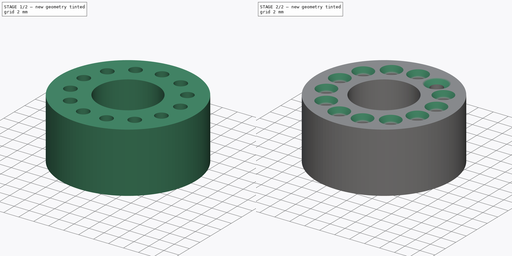
[diagram: build sequence overview — one tinted view per stage of 2, left to right]
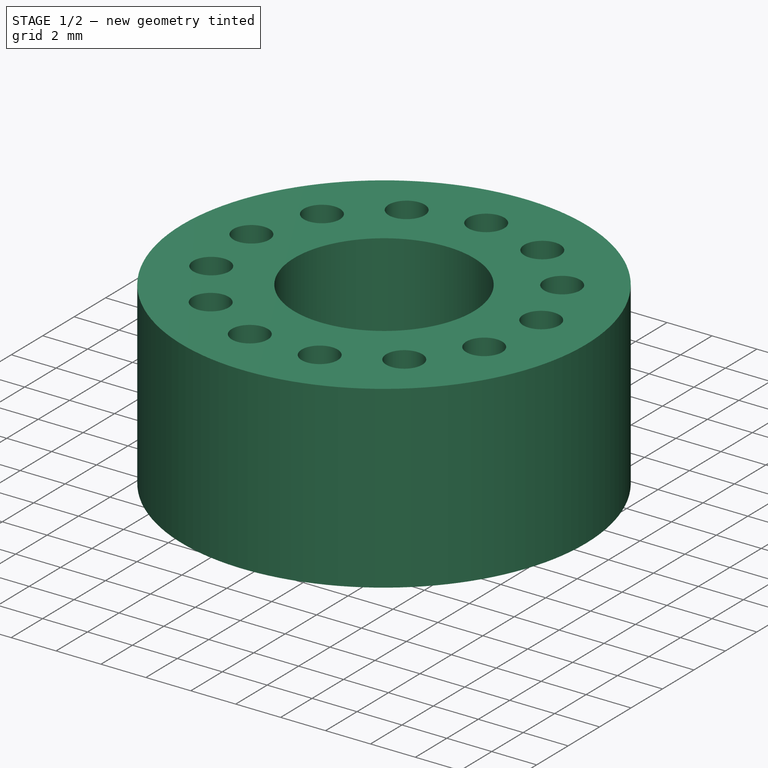
[diagram: stage 1 of 2 — iso view after this stage's code; geometry added in this stage tinted green]
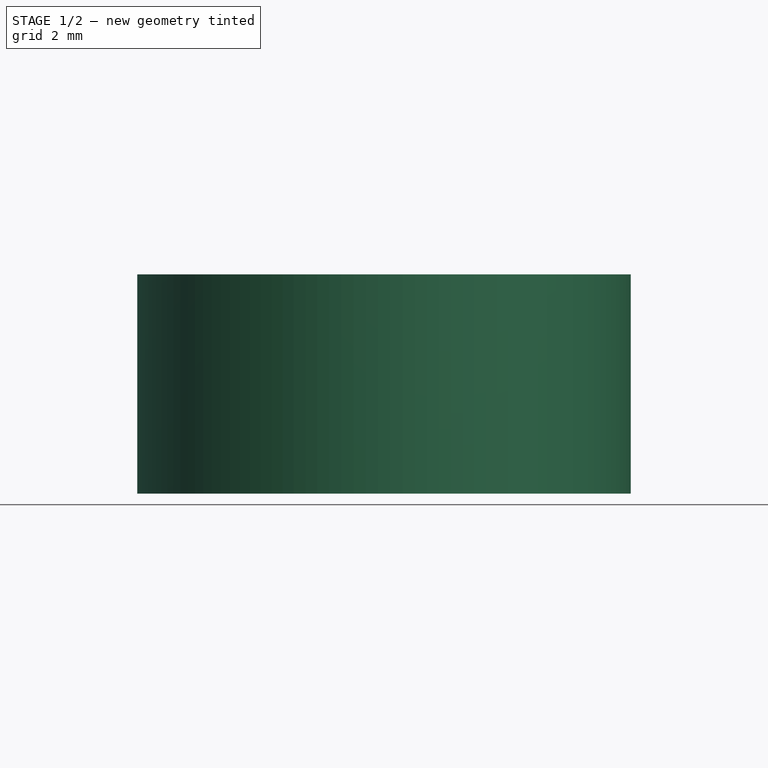
[diagram: stage 1 of 2 — front view after this stage's code; geometry added in this stage tinted green]
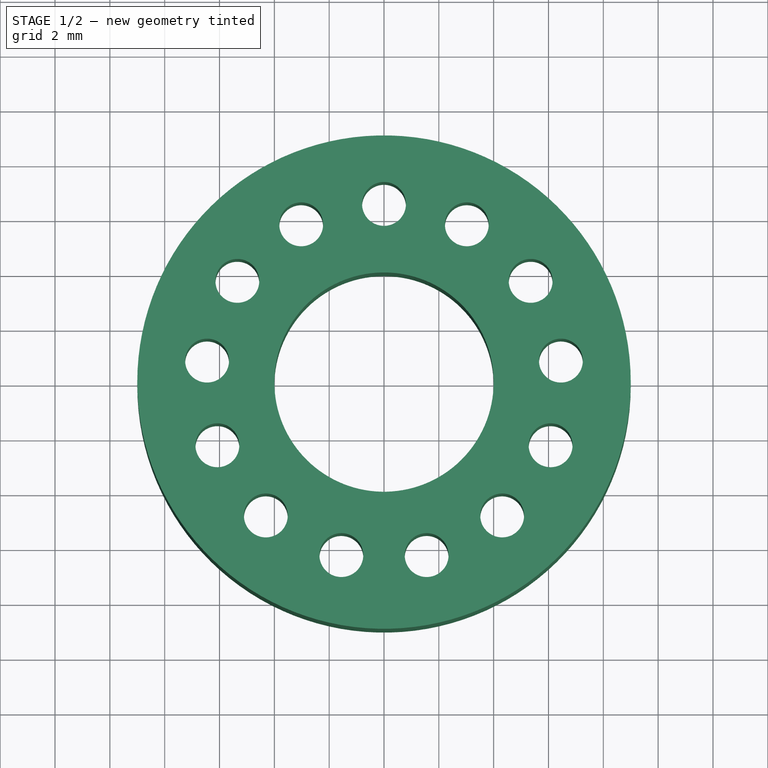
[diagram: stage 1 of 2 — top view after this stage's code; geometry added in this stage tinted green]
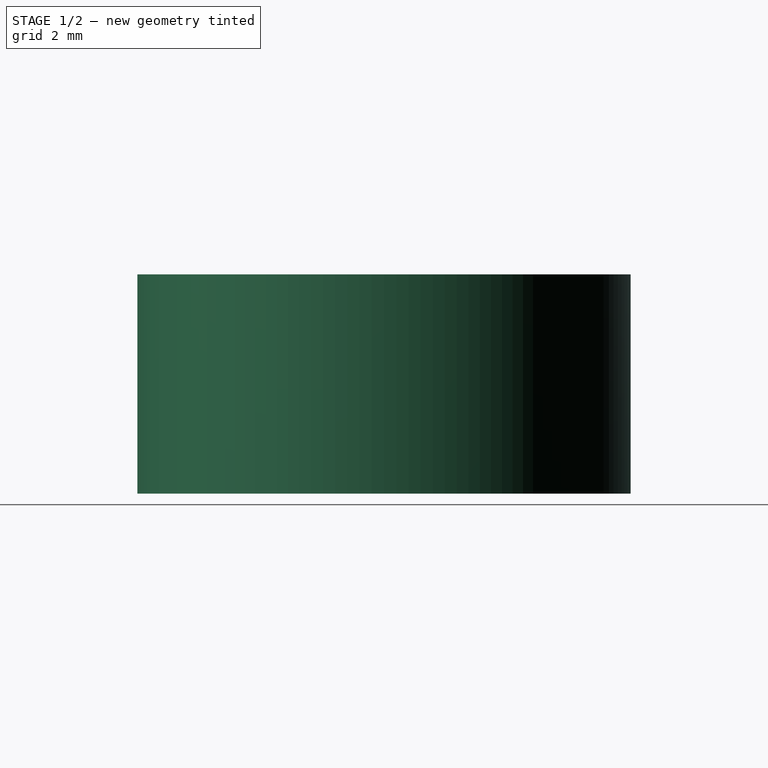
[diagram: stage 1 of 2 — right view after this stage's code; geometry added in this stage tinted green]
FCSTD DOCUMENT  (FreeCAD 0.19R)
Label: nixie-tube-lead-aligner
License: All rights reserved
LicenseURL: http://en.wikipedia.org/wiki/All_rights_reserved
objects: Part::Chamfer×2, Sketcher::SketchObject×1, Part::Extrusion×1
note: 4 computed .brp shape members not serialized (recipe doc carries the construction recipe); baked Part::Feature solids carry a one-line shape summary decoded from their .brp

FEATURE [Sketcher::SketchObject] Sketch  label="small-alignment-profile"
  FullyConstrained = true
  sketch-geometry (31):
    g0: LineSegment StartX=4.3103 StartY=-4.86532 StartZ=0 EndX=6.07761 EndY=-2.30493 EndZ=0
    g1: LineSegment StartX=6.07761 StartY=-2.30493 StartZ=0 EndX=6.45261 EndY=0.783488 EndZ=0
    g2: LineSegment StartX=6.45261 StartY=0.783488 StartZ=0 EndX=5.3494 EndY=3.69242 EndZ=0
    g3: LineSegment StartX=5.3494 StartY=3.69242 StartZ=0 EndX=3.0207 EndY=5.75546 EndZ=0
    g4: LineSegment StartX=3.0207 StartY=5.75546 StartZ=0 EndX=0 EndY=6.5 EndZ=0
    g5: LineSegment StartX=0 StartY=6.5 StartZ=0 EndX=-3.0207 EndY=5.75546 EndZ=0
    g6: LineSegment StartX=-3.0207 StartY=5.75546 StartZ=0 EndX=-5.3494 EndY=3.69242 EndZ=0
    g7: LineSegment StartX=-5.3494 StartY=3.69242 StartZ=0 EndX=-6.45261 EndY=0.783488 EndZ=0
    g8: LineSegment StartX=-6.45261 StartY=0.783488 StartZ=0 EndX=-6.07761 EndY=-2.30493 EndZ=0
    g9: LineSegment StartX=-6.07761 StartY=-2.30493 StartZ=0 EndX=-4.3103 EndY=-4.86532 EndZ=0
    g10: LineSegment StartX=-4.3103 StartY=-4.86532 StartZ=0 EndX=-1.55555 EndY=-6.31112 EndZ=0
    g11: LineSegment StartX=-1.55555 StartY=-6.31112 StartZ=0 EndX=1.55555 EndY=-6.31112 EndZ=0
    g12: LineSegment StartX=1.55555 StartY=-6.31112 StartZ=0 EndX=4.3103 EndY=-4.86532 EndZ=0
    g13: Circle CenterX=0 CenterY=0 CenterZ=0 NormalX=0 NormalY=0 NormalZ=1 AngleXU=0 Radius=6.5
    g14: Circle CenterX=-3.0207 CenterY=5.75546 CenterZ=0 NormalX=0 NormalY=0 NormalZ=1 AngleXU=0 Radius=0.8
    g15: Circle CenterX=-5.3494 CenterY=3.69242 CenterZ=0 NormalX=0 NormalY=0 NormalZ=1 AngleXU=0 Radius=0.8
    g16: Circle CenterX=-6.45261 CenterY=0.783488 CenterZ=0 NormalX=0 NormalY=0 NormalZ=1 AngleXU=0 Radius=0.8
    g17: Circle CenterX=-6.07761 CenterY=-2.30493 CenterZ=0 NormalX=0 NormalY=0 NormalZ=1 AngleXU=0 Radius=0.8
    g18: Circle CenterX=-4.3103 CenterY=-4.86532 CenterZ=0 NormalX=0 NormalY=0 NormalZ=1 AngleXU=0 Radius=0.8
    g19: Circle CenterX=-1.55555 CenterY=-6.31112 CenterZ=0 NormalX=0 NormalY=0 NormalZ=1 AngleXU=0 Radius=0.8
    g20: Circle CenterX=1.55555 CenterY=-6.31112 CenterZ=0 NormalX=0 NormalY=0 NormalZ=1 AngleXU=0 Radius=0.8
    g21: Circle CenterX=4.3103 CenterY=-4.86532 CenterZ=0 NormalX=0 NormalY=0 NormalZ=1 AngleXU=0 Radius=0.8
    g22: Circle CenterX=6.07761 CenterY=-2.30493 CenterZ=0 NormalX=0 NormalY=0 NormalZ=1 AngleXU=0 Radius=0.8
    g23: Circle CenterX=6.45261 CenterY=0.783488 CenterZ=0 NormalX=0 NormalY=0 NormalZ=1 AngleXU=0 Radius=0.8
    g24: Circle CenterX=5.3494 CenterY=3.69242 CenterZ=0 NormalX=0 NormalY=0 NormalZ=1 AngleXU=0 Radius=0.8
    g25: Circle CenterX=3.0207 CenterY=5.75546 CenterZ=0 NormalX=0 NormalY=0 NormalZ=1 AngleXU=0 Radius=0.8
    g26: Circle CenterX=0 CenterY=6.5 CenterZ=0 NormalX=0 NormalY=0 NormalZ=1 AngleXU=0 Radius=0.8
    g27: Circle CenterX=0 CenterY=0 CenterZ=0 NormalX=0 NormalY=0 NormalZ=1 AngleXU=0 Radius=4
    g28: Circle CenterX=0 CenterY=0 CenterZ=0 NormalX=0 NormalY=0 NormalZ=1 AngleXU=0 Radius=9
    g29: LineSegment StartX=0 StartY=6.5 StartZ=0 EndX=0 EndY=9 EndZ=0
    g30: LineSegment StartX=0 StartY=6.5 StartZ=0 EndX=0 EndY=4 EndZ=0
  constraints (55):
    c: Coincident(g0,g1)
    c: Coincident(g1,g2)
    c: Coincident(g2,g3)
    c: Coincident(g3,g4)
    c: Coincident(g4,g5)
    c: Coincident(g5,g6)
    c: Coincident(g6,g7)
    c: Coincident(g7,g8)
    c: Coincident(g8,g9)
    c: Coincident(g9,g10)
    c: Coincident(g10,g11)
    c: Coincident(g11,g12)
    c: Coincident(g12,g0)
    c: Equal(g0, g1-g12) x12
    c: PointOnObject(g0,g13)
    c: PointOnObject(g1,g13)
    c: PointOnObject(g2,g13)
    c: PointOnObject(g3,g13)
    c: PointOnObject(g4,g13)
    c: PointOnObject(g5,g13)
    c: PointOnObject(g6,g13)
    c: PointOnObject(g7,g13)
    c: PointOnObject(g8,g13)
    c: PointOnObject(g9,g13)
    c: PointOnObject(g10,g13)
    c: PointOnObject(g11,g13)
    c: PointOnObject(g12,g13)
    c: Coincident(g14,g5)
    c: Coincident(g15,g6)
    c: Coincident(g16,g7)
    c: Coincident(g17,g8)
    c: Coincident(g18,g9)
    c: Coincident(g19,g10)
    c: Coincident(g20,g11)
    c: Coincident(g21,g0)
    c: Coincident(g22,g0)
    c: Coincident(g23,g1)
    c: Coincident(g24,g2)
    c: Coincident(g25,g3)
    c: Coincident(g26,g4)
    c: Equal(g26, g14-g25) x12
    c: Radius(g13) = 6.5
    c: Coincident(g13,g-1)
    c: Coincident(g27,g-1)
    c: Coincident(g28,g27)
    c: Radius(g28) = 9
    c: PointOnObject(g26,g-2)
    c: Coincident(g29,g26)
    c: PointOnObject(g29,g28)
    c: Vertical(g29)
    c: Coincident(g30,g26)
    c: PointOnObject(g30,g27)
    c: Vertical(g30)
    c: Equal(g30,g29)
    c: Radius(g26) = 0.8
FEATURE [Part::Extrusion] Extrude  label="small-alignment-body"
  Base = -> Sketch
  Dir = (0,0,1)
  DirMode = 2
  FaceMakerClass = Part::FaceMakerBullseye
  LengthFwd = 8
  LengthRev = 0
  Solid = true
  Symmetric = false
FEATURE [Part::Chamfer] Chamfer  label="small-wide-chamfer"
  Base = -> Extrude
  Edges = 13 edges: [Edge8 r1=2 r2=0.75,Edge11 r1=2 r2=0.75,Edge14 r1=2 r2=0.75,Edge17 r1=2 r2=0.75,Edge20 r1=2 r2=0.75,Edge23 r1=2 r2=0.75,Edge26 r1=2 r2=0.75,Edge29 r1=2 r2=0.75,Edge32 r1=2 r2=0.75,Edge35 r1=2 r2=0.75,Edge38 r1=2 r2=0.75,Edge41 r1=2 r2=0.75,Edge44 r1=2 r2=0.75]
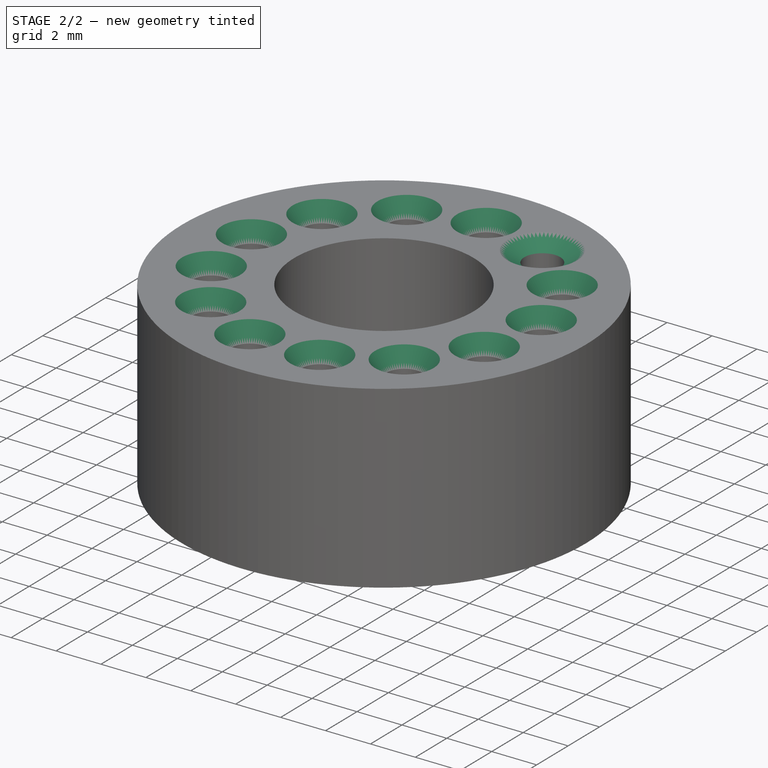
[diagram: stage 2 of 2 — iso view after this stage's code; geometry added in this stage tinted green]
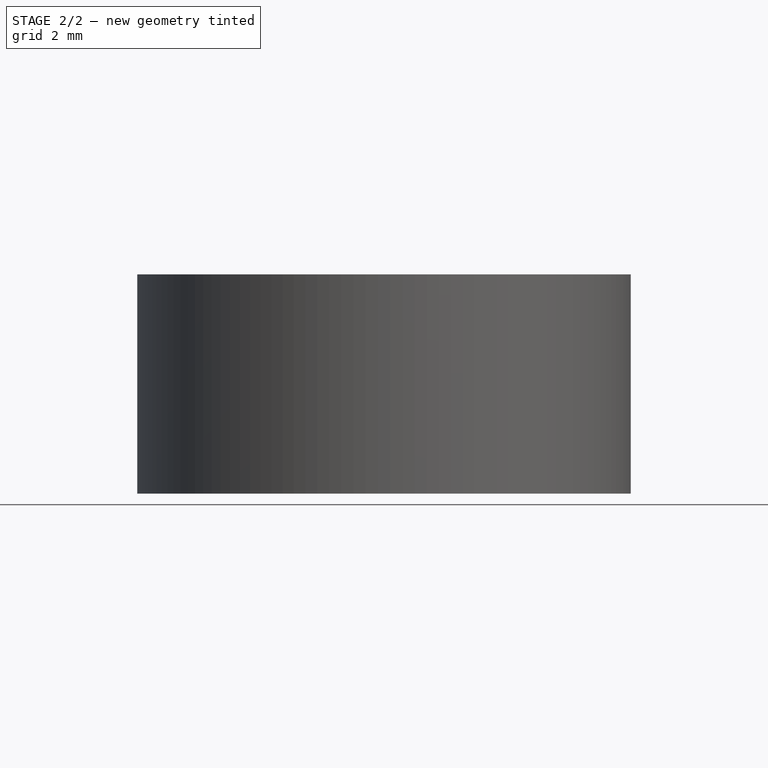
[diagram: stage 2 of 2 — front view after this stage's code; geometry added in this stage tinted green]
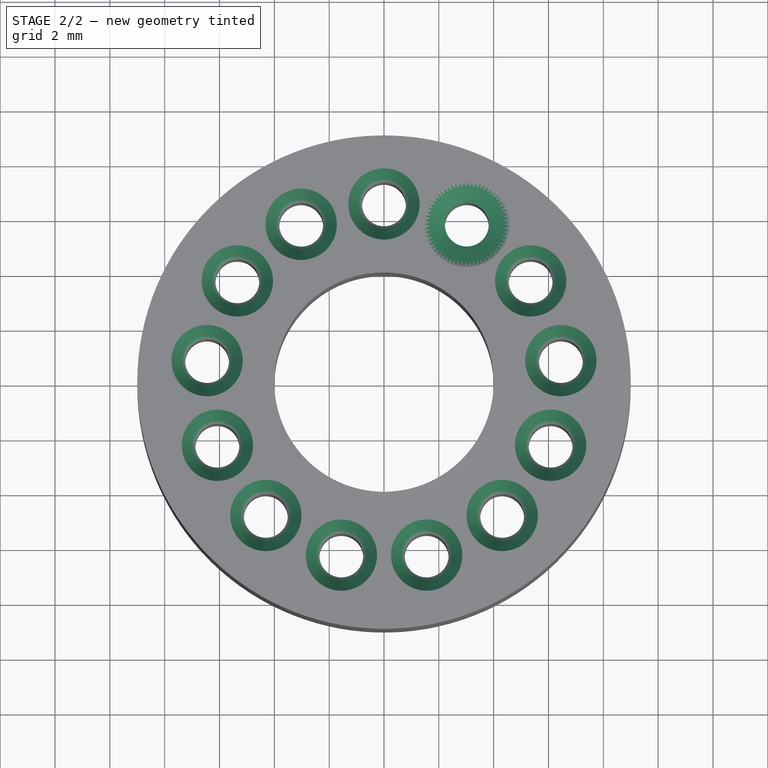
[diagram: stage 2 of 2 — top view after this stage's code; geometry added in this stage tinted green]
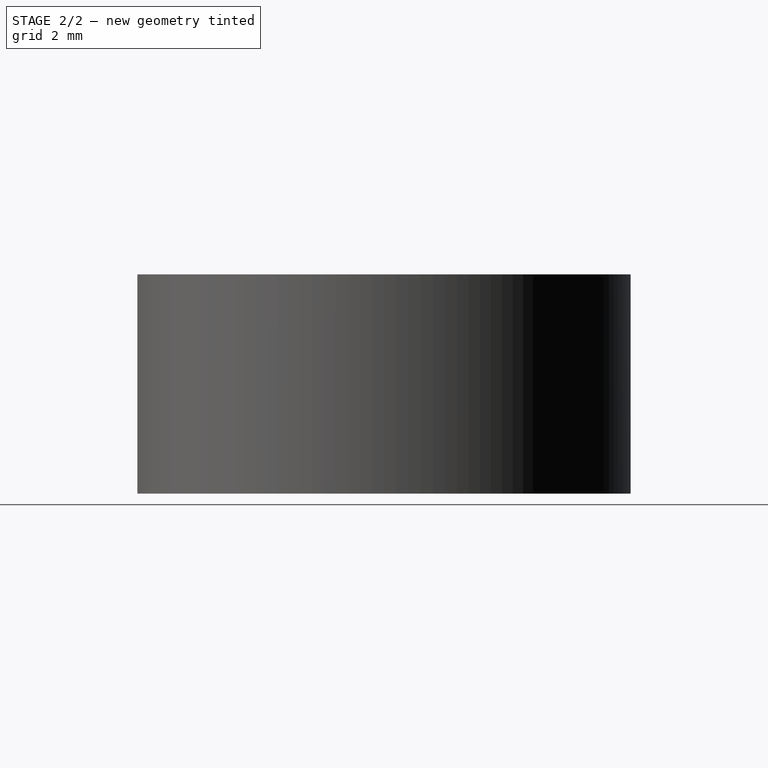
[diagram: stage 2 of 2 — right view after this stage's code; geometry added in this stage tinted green]
FEATURE [Part::Chamfer] Chamfer001  label="alignment-tool"
  Base = -> Chamfer
  Edges = 13 edges: [Edge2 r1=0.5 r2=0.75,Edge8 r1=0.5 r2=0.75,Edge9 r1=0.5 r2=0.75,Edge10 r1=0.5 r2=0.75,Edge11 r1=0.5 r2=0.75,Edge12 r1=0.5 r2=0.75,Edge13 r1=0.5 r2=0.75,Edge14 r1=0.5 r2=0.75,Edge15 r1=0.5 r2=0.75,Edge16 r1=0.5 r2=0.75,Edge17 r1=0.5 r2=0.75,Edge18 r1=0.5 r2=0.75,Edge19 r1=0.5 r2=0.75]
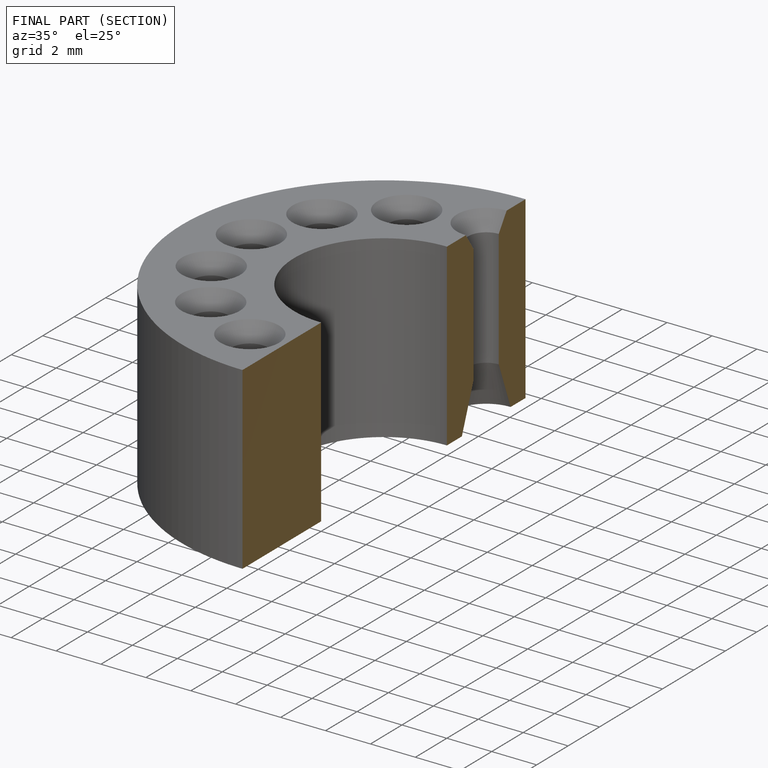
[diagram: finished part — half-section view (interior)]
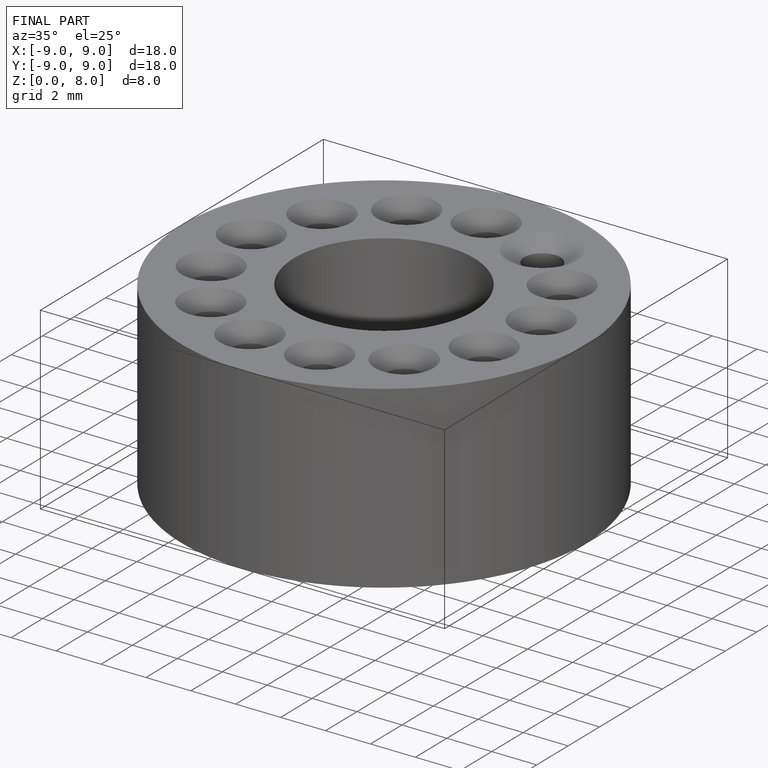
[diagram: finished part — iso view with bounding-box wireframe]
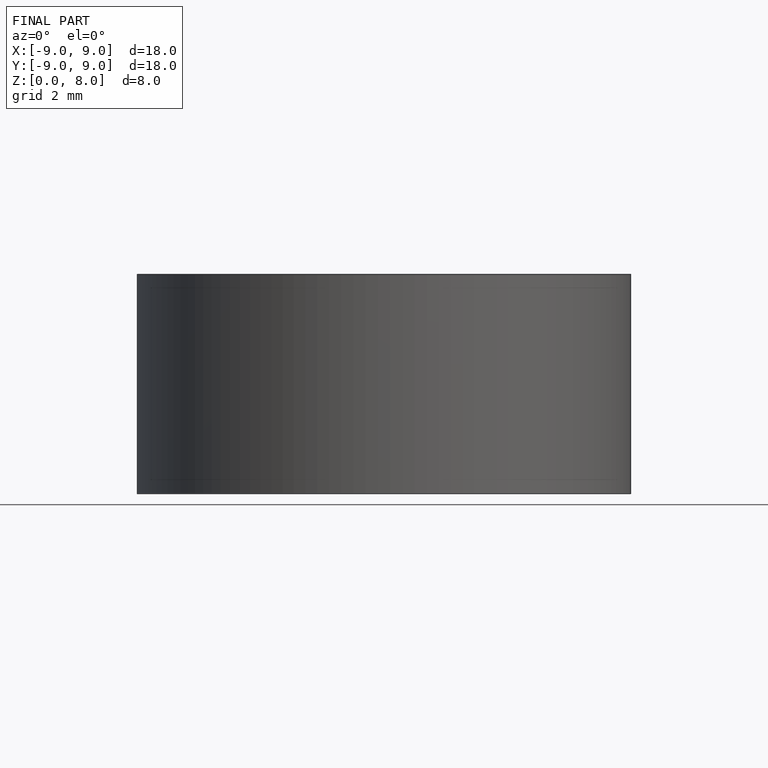
[diagram: finished part — front view with bounding-box wireframe]
